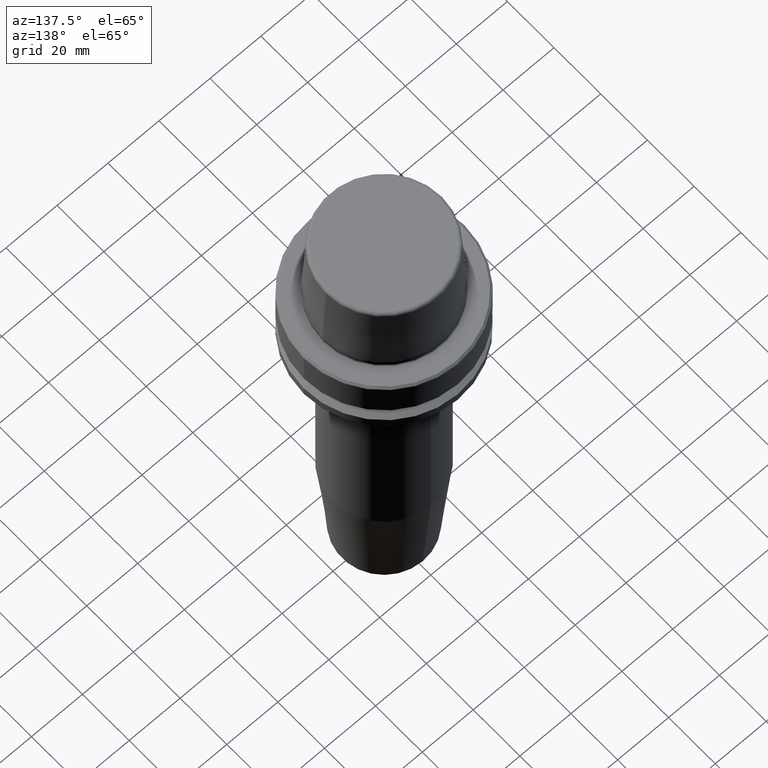
[diagram: clean part render]
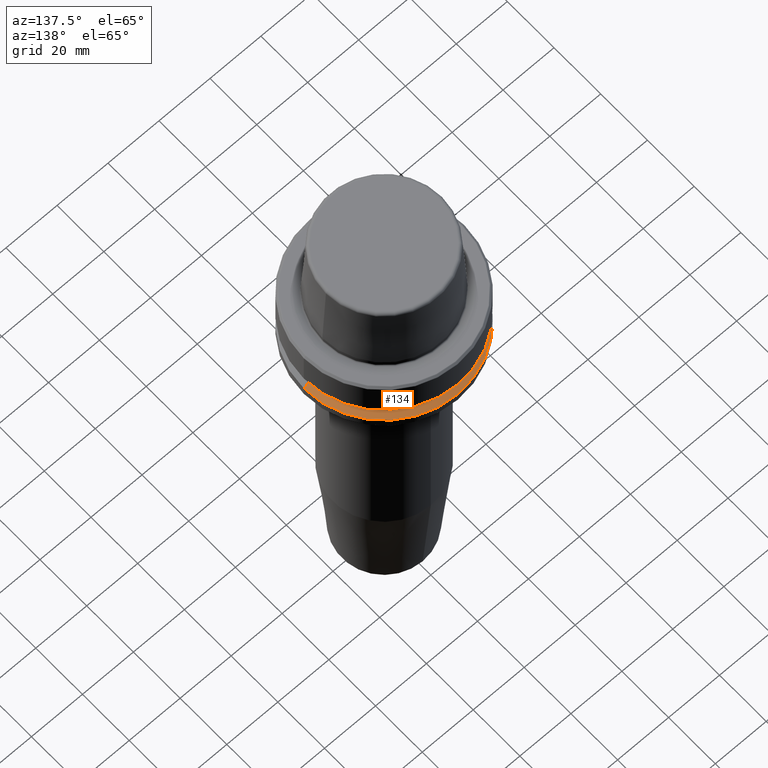
[diagram: same view with one face highlighted and labeled with its STEP entity id]
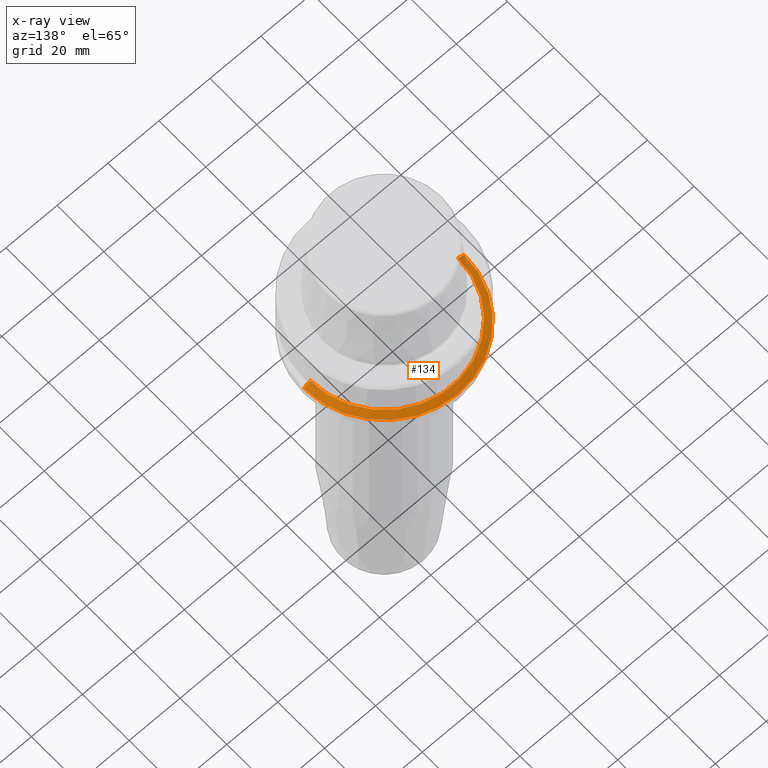
[diagram: x-ray of the same camera — body ghosted, the highlighted face saturated]
A machine part, auxiliary view. The second image highlights one B-rep face of the part: STEP entity #134.
The next image is the same camera in x-ray: the body ghosted, the highlighted face saturated — about 2% of this face is hidden behind the body in this view.
In plain terms, the highlighted conical surface has half-angle 60 deg.
Its self-contained STEP definition (entity closure, byte-faithful):
#36 = DIRECTION ( 'NONE',  ( 0.8660254037844410400, 1.060575238724909700E-016, -0.4999999999999958400 ) ) ;
#49 = CIRCLE ( 'NONE', #869, 28.94089653438085100 ) ;
#59 = CARTESIAN_POINT ( 'NONE',  ( 0.0000000000000000000, 0.0000000000000000000, -21.37749907475931700 ) ) ;
#76 = CARTESIAN_POINT ( 'NONE',  ( -31.50000000000000000, 3.857637417314162700E-015, -21.37749907475931700 ) ) ;
#104 = LINE ( 'NONE', #235, #1109 ) ;
#134 = ADVANCED_FACE ( 'NONE', ( #323 ), #890, .T. ) ;
#143 = ORIENTED_EDGE ( 'NONE', *, *, #994, .F. ) ;
#157 = EDGE_CURVE ( 'NONE', #785, #1129, #372, .T. ) ;
#202 = DIRECTION ( 'NONE',  ( -1.000000000000000000, 0.0000000000000000000, 0.0000000000000000000 ) ) ;
#235 = CARTESIAN_POINT ( 'NONE',  ( -31.50000000000000000, 0.0000000000000000000, -21.37749907475931700 ) ) ;
#236 = CARTESIAN_POINT ( 'NONE',  ( 0.0000000000000000000, 0.0000000000000000000, -19.90000000000001600 ) ) ;
#245 = VECTOR ( 'NONE', #36, 1000.000000000000100 ) ;
#272 = DIRECTION ( 'NONE',  ( 1.000000000000000000, 0.0000000000000000000, 0.0000000000000000000 ) ) ;
#323 = FACE_OUTER_BOUND ( 'NONE', #325, .T. ) ;
#325 = EDGE_LOOP ( 'NONE', ( #956, #1072, #509, #143 ) ) ;
#372 = CIRCLE ( 'NONE', #1039, 31.50000000000000000 ) ;
#389 = DIRECTION ( 'NONE',  ( -0.0000000000000000000, -0.0000000000000000000, 1.000000000000000000 ) ) ;
#504 = VERTEX_POINT ( 'NONE', #669 ) ;
#509 = ORIENTED_EDGE ( 'NONE', *, *, #157, .T. ) ;
#623 = CARTESIAN_POINT ( 'NONE',  ( 31.50000000000000000, 3.857637417314162700E-015, -21.37749907475931700 ) ) ;
#627 = EDGE_CURVE ( 'NONE', #504, #1009, #49, .T. ) ;
#669 = CARTESIAN_POINT ( 'NONE',  ( 28.94089653438085100, 3.700937523921292900E-015, -19.90000000000001600 ) ) ;
#731 = CARTESIAN_POINT ( 'NONE',  ( -28.94089653438085100, 0.0000000000000000000, -19.90000000000001600 ) ) ;
#770 = AXIS2_PLACEMENT_3D ( 'NONE', #59, #835, #202 ) ;
#771 = LINE ( 'NONE', #623, #245 ) ;
#785 = VERTEX_POINT ( 'NONE', #795 ) ;
#795 = CARTESIAN_POINT ( 'NONE',  ( 31.50000000000000000, 0.0000000000000000000, -21.37749907475931700 ) ) ;
#835 = DIRECTION ( 'NONE',  ( 0.0000000000000000000, 0.0000000000000000000, -1.000000000000000000 ) ) ;
#846 = DIRECTION ( 'NONE',  ( 1.000000000000000000, 0.0000000000000000000, 0.0000000000000000000 ) ) ;
#856 = EDGE_CURVE ( 'NONE', #504, #785, #771, .T. ) ;
#869 = AXIS2_PLACEMENT_3D ( 'NONE', #236, #389, #272 ) ;
#890 = CONICAL_SURFACE ( 'NONE', #770, 31.50000000000000000, 1.047197551196602500 ) ;
#925 = DIRECTION ( 'NONE',  ( -0.8660254037844410400, 0.0000000000000000000, -0.4999999999999958400 ) ) ;
#956 = ORIENTED_EDGE ( 'NONE', *, *, #627, .F. ) ;
#994 = EDGE_CURVE ( 'NONE', #1009, #1129, #104, .T. ) ;
#1009 = VERTEX_POINT ( 'NONE', #731 ) ;
#1039 = AXIS2_PLACEMENT_3D ( 'NONE', #1190, #1118, #846 ) ;
#1072 = ORIENTED_EDGE ( 'NONE', *, *, #856, .T. ) ;
#1109 = VECTOR ( 'NONE', #925, 1000.000000000000100 ) ;
#1118 = DIRECTION ( 'NONE',  ( -0.0000000000000000000, -0.0000000000000000000, 1.000000000000000000 ) ) ;
#1129 = VERTEX_POINT ( 'NONE', #76 ) ;
#1190 = CARTESIAN_POINT ( 'NONE',  ( 0.0000000000000000000, 0.0000000000000000000, -21.37749907475931700 ) ) ;